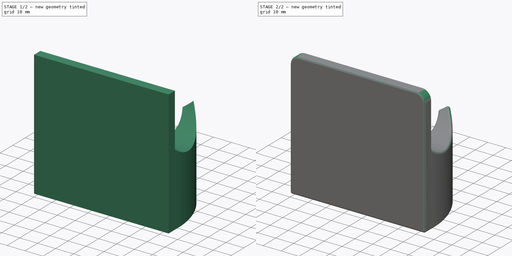
[diagram: build sequence overview — one tinted view per stage of 2, left to right]
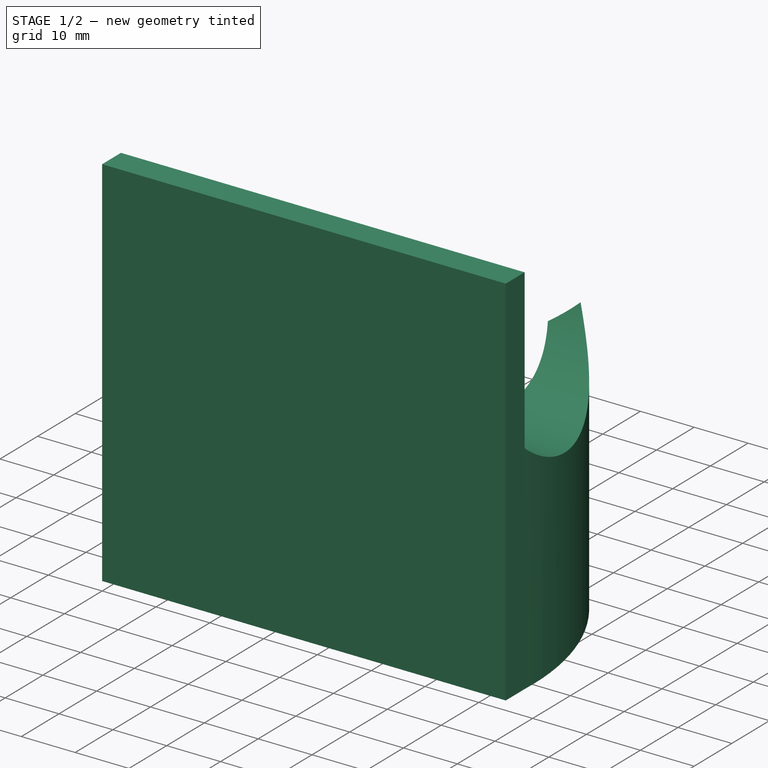
[diagram: stage 1 of 2 — iso view after this stage's code; geometry added in this stage tinted green]
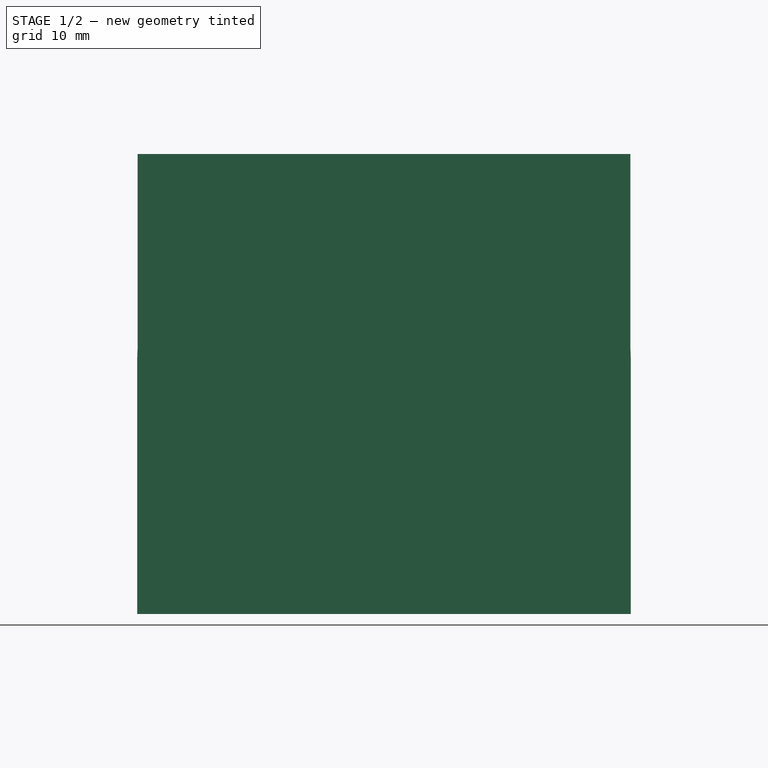
[diagram: stage 1 of 2 — front view after this stage's code; geometry added in this stage tinted green]
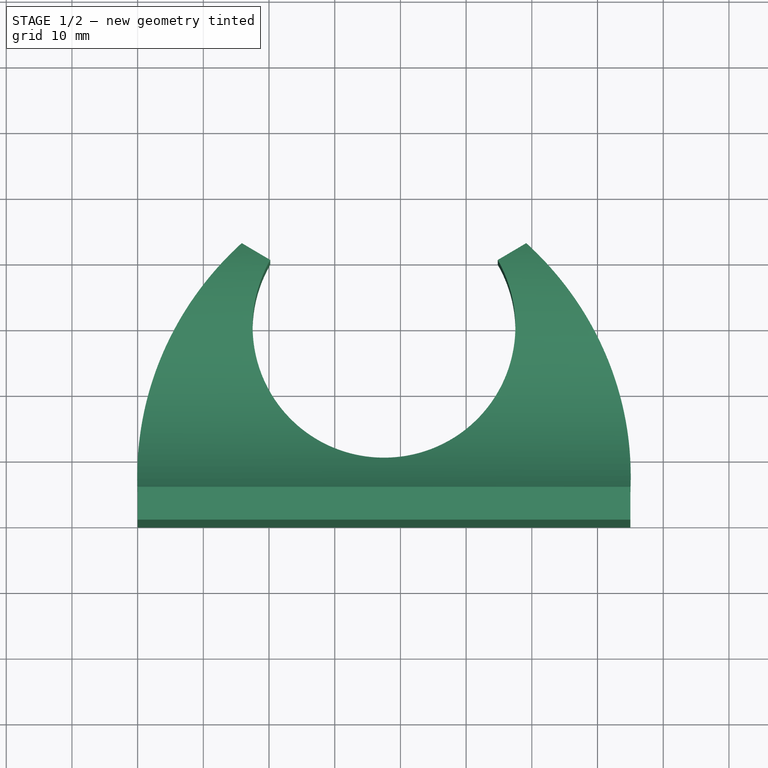
[diagram: stage 1 of 2 — top view after this stage's code; geometry added in this stage tinted green]
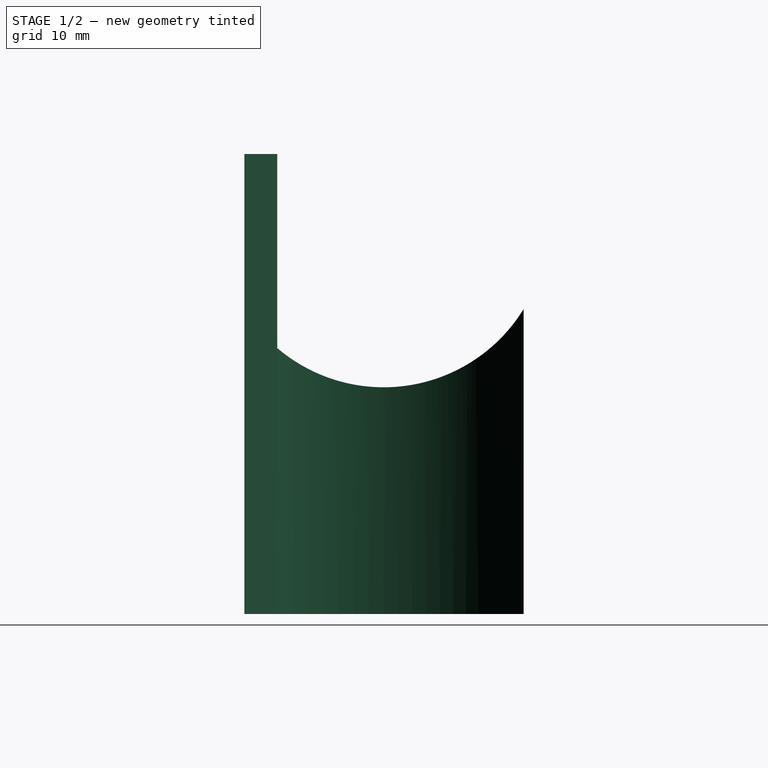
[diagram: stage 1 of 2 — right view after this stage's code; geometry added in this stage tinted green]
FCSTD DOCUMENT  (FreeCAD 1.0R39109 (Git))
Label: broom_hook_awning_v2
License: All rights reserved
LicenseURL: https://en.wikipedia.org/wiki/All_rights_reserved
objects: Sketcher::SketchObject×2, PartDesign::Fillet×2, Spreadsheet::Sheet×1, PartDesign::Pad×1, PartDesign::Pocket×1, PartDesign::Body×1
note: 17 computed .brp shape members not serialized (recipe doc carries the construction recipe); baked Part::Feature solids carry a one-line shape summary decoded from their .brp

FEATURE [Spreadsheet::Sheet] Spreadsheet  label="dimensions"
  cells = A1='width; B1(width)==75 mm; A2='height; B2(height)==50 mm; A3='depth; B3(depth)==5 mm; A4='diameter; B4(diameter)==40 mm
FEATURE [Sketcher::SketchObject] Sketch
  ArcFitTolerance = 0
  AttachmentSupport = -> [XY_Plane]
  FullyConstrained = false
  MakeInternals = false
  MapMode = 5
  expr: Constraints[0] = <<dimensions>>.diameter
  expr: Constraints[10] = <<dimensions>>.depth
  expr: Constraints[11] = <<dimensions>>.width
  expr: Constraints[1] = <<dimensions>>.width / 2
  expr: Constraints[6] = 37.5 mm + <<dimensions>>.depth
  sketch-geometry (9):
    g0: ArcOfCircle CenterX=37.5 CenterY=30 CenterZ=0 NormalX=0 NormalY=0 NormalZ=1 AngleXU=0 Radius=20 StartAngle=2.61799 EndAngle=6.80678
    g1: LineSegment StartX=15.8494 StartY=42.5 StartZ=0 EndX=20.1795 EndY=40 EndZ=0
    g2: LineSegment StartX=54.8205 StartY=40 StartZ=0 EndX=59.1506 EndY=42.5 EndZ=0
    g3: LineSegment StartX=75 StartY=0 StartZ=0 EndX=75 EndY=5 EndZ=0
    g4: LineSegment StartX=0 StartY=5 StartZ=0 EndX=0 EndY=0 EndZ=0
    g5: LineSegment [constr] StartX=-32.4803 StartY=25.4113 StartZ=0 EndX=115.619 EndY=25.4113 EndZ=0
    g6: ArcOfCircle CenterX=47.094 CenterY=7.19511 CenterZ=0 NormalX=0 NormalY=0 NormalZ=1 AngleXU=0 Radius=47.1451 StartAngle=2.29526 EndAngle=3.18817
    g7: ArcOfCircle CenterX=27.906 CenterY=7.19511 CenterZ=0 NormalX=0 NormalY=0 NormalZ=1 AngleXU=0 Radius=47.1451 StartAngle=6.23661 EndAngle=7.12952
    g8: LineSegment StartX=0 StartY=0 StartZ=0 EndX=75 EndY=0 EndZ=0
  constraints (20):
    c: Diameter(g0) = 40
    c: DistanceX(g-1,g0) = 37.5
    c: Angle(g2,g1) = 2.0944
    c: Coincident(g0,g1)
    c: Coincident(g2,g0)
    c: Horizontal(g1,g2)
    c: DistanceY(g-1,g1) = 42.5
    c: Horizontal(g0,g0)
    c: Vertical(g3)
    c: Vertical(g4)
    c: DistanceY(g3,g3) = 5
    c: DistanceX(g4,g3) = 75
    c: Horizontal(g5)
    c: Coincident(g6,g4)
    c: Coincident(g6,g1)
    c: Coincident(g7,g3)
    c: Equal(g6,g7)
    c: Coincident(g8,g4)
    c: Coincident(g8,g3)
    c: Horizontal(g8)
FEATURE [PartDesign::Pad] Pad
  Direction = (0,0,1)
  Length = 70
  Length2 = 10
  Profile = -> Sketch
  ReferenceAxis = -> Sketch [N_Axis]
  Suppressed = false
  Type = 0
FEATURE [Sketcher::SketchObject] Sketch001
  ArcFitTolerance = 0
  AttachmentOffset = pos=(0,0,-1) rot=(0,0,1;0rad)
  AttachmentSupport = -> [YZ_Plane]
  FullyConstrained = true
  MakeInternals = false
  MapMode = 5
  Placement = pos=(-1,0,0) rot=(0.57735,0.57735,0.57735;2.0944rad)
  sketch-geometry (2):
    g0: ArcOfCircle CenterX=21.2071 CenterY=59.5 CenterZ=0 NormalX=0 NormalY=0 NormalZ=1 AngleXU=0 Radius=25 StartAngle=4.00706 EndAngle=8.55931
    g1: LineSegment StartX=5 StartY=40.465 StartZ=0 EndX=5 EndY=78.535 EndZ=0
  constraints (7):
    c: Diameter(g0) = 50
    c: Vertical(g1)
    c: Coincident(g0,g1)
    c: Coincident(g0,g1)
    c: DistanceX(g-1,g0) = 5
    c: DistanceY(g1,g1) = 38.07
    c: DistanceY(g-1,g0) = 59.5
FEATURE [PartDesign::Pocket] Pocket
  BaseFeature = -> Pad
  Direction = (-1,0,0)
  Length = 5
  Length2 = 5
  Profile = -> Sketch001
  ReferenceAxis = -> Sketch001 [N_Axis]
  Reversed = true
  Suppressed = false
  Type = 1
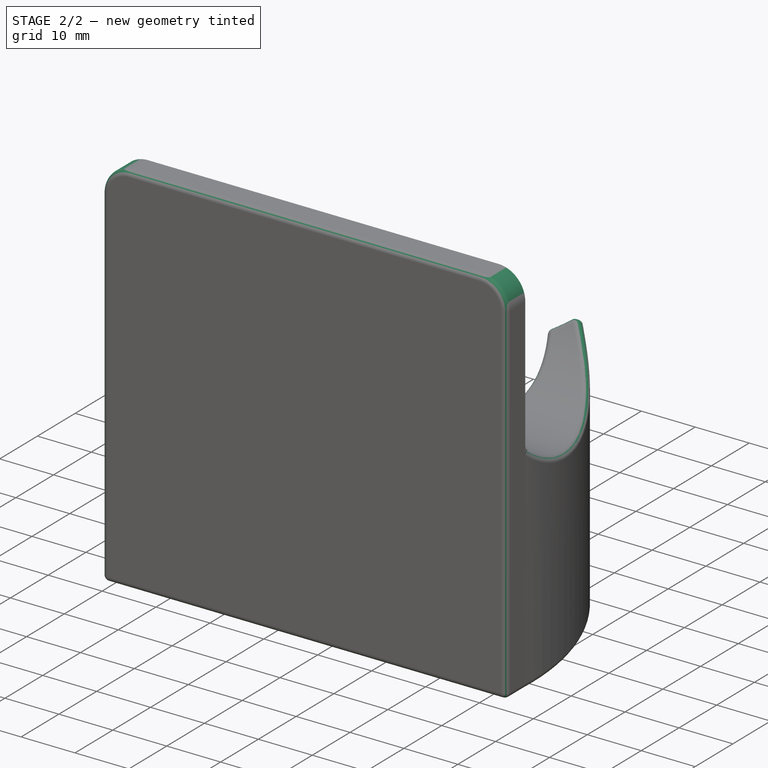
[diagram: stage 2 of 2 — iso view after this stage's code; geometry added in this stage tinted green]
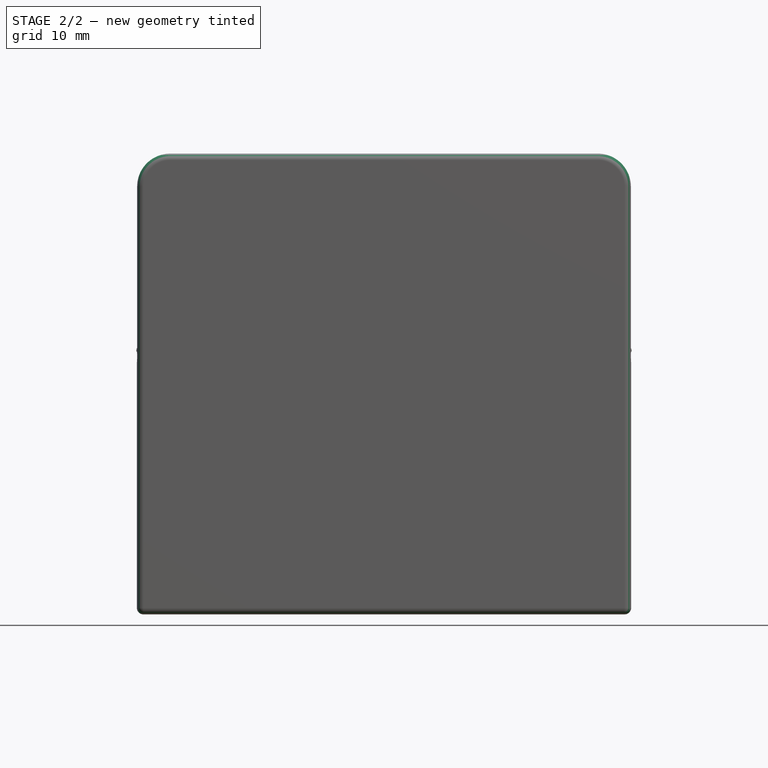
[diagram: stage 2 of 2 — front view after this stage's code; geometry added in this stage tinted green]
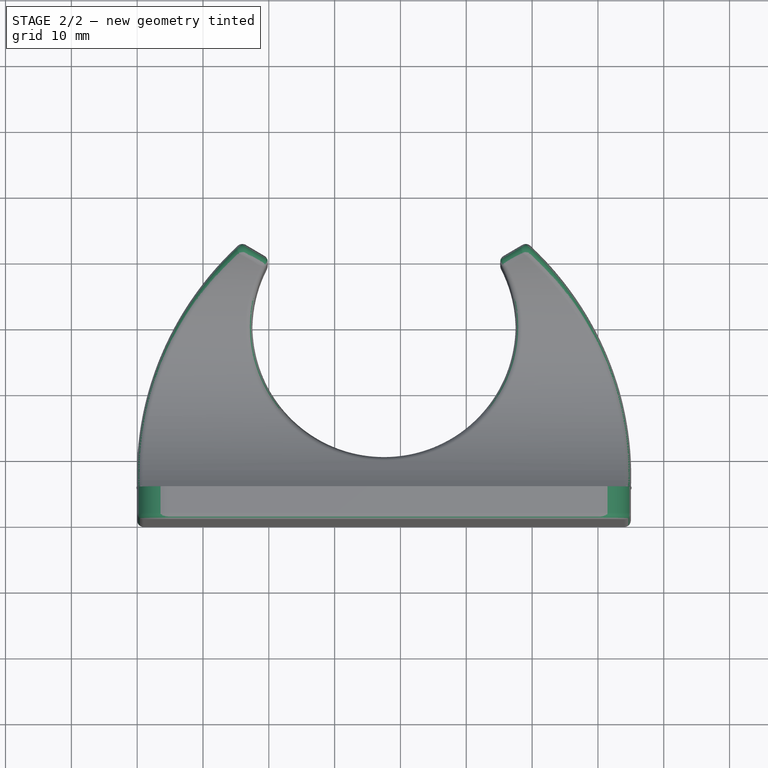
[diagram: stage 2 of 2 — top view after this stage's code; geometry added in this stage tinted green]
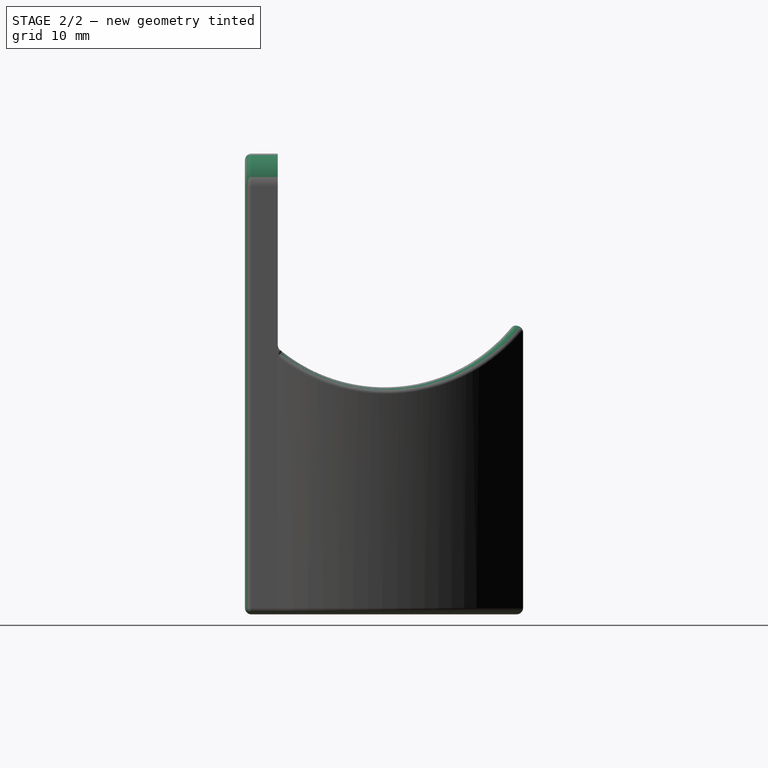
[diagram: stage 2 of 2 — right view after this stage's code; geometry added in this stage tinted green]
FEATURE [PartDesign::Fillet] Fillet
  Base = -> Pocket [Edge28,Edge14]
  BaseFeature = -> Pocket
  Radius = 5
  Refine = true
  SupportTransform = false
  Suppressed = false
  UseAllEdges = false
FEATURE [PartDesign::Fillet] Fillet001
  Base = -> Fillet [Edge23,Edge36,Edge29,Edge30,Edge7,Edge26,Edge27,Edge35,Edge28,Edge14,Edge25,Edge15,Edge34,Edge22,Edge21,Edge20,Edge13,Edge5,Edge24,Edge16,Edge18,Edge4]
  BaseFeature = -> Fillet
  Radius = 1
  Refine = true
  SupportTransform = false
  Suppressed = false
  UseAllEdges = false
FEATURE [PartDesign::Body] Body  label="Körper"
  AllowCompound = false
  Group = -> [Sketch,Pad,Sketch001,Pocket,Fillet,Fillet001]
  Origin = -> Origin
  Tip = -> Fillet001
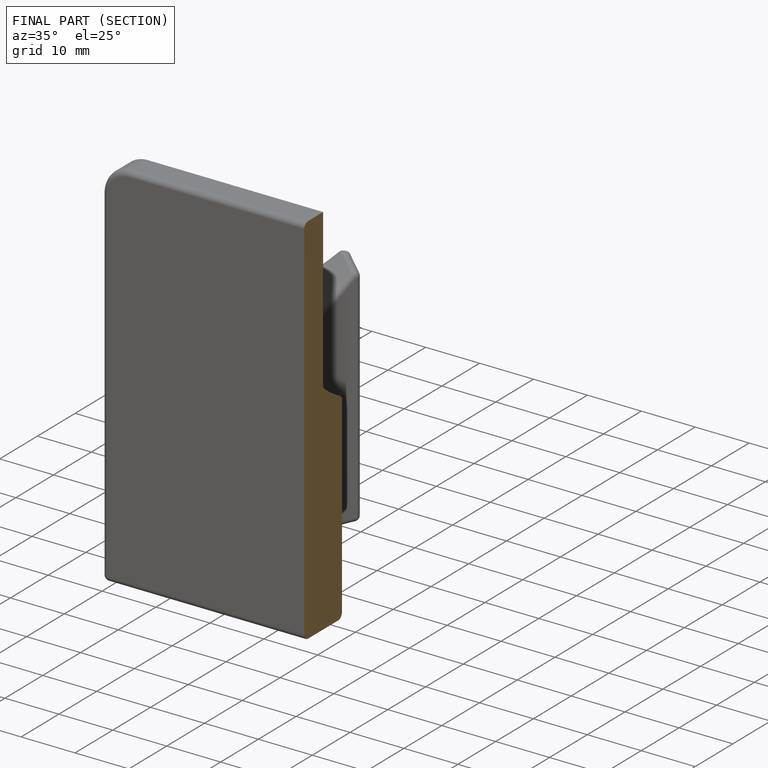
[diagram: finished part — half-section view (interior)]
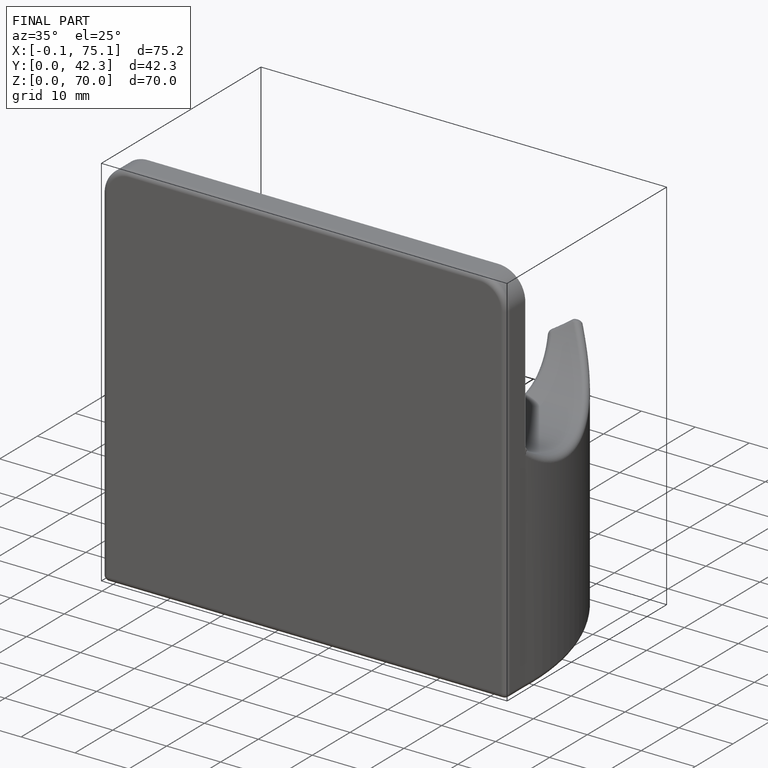
[diagram: finished part — iso view with bounding-box wireframe]
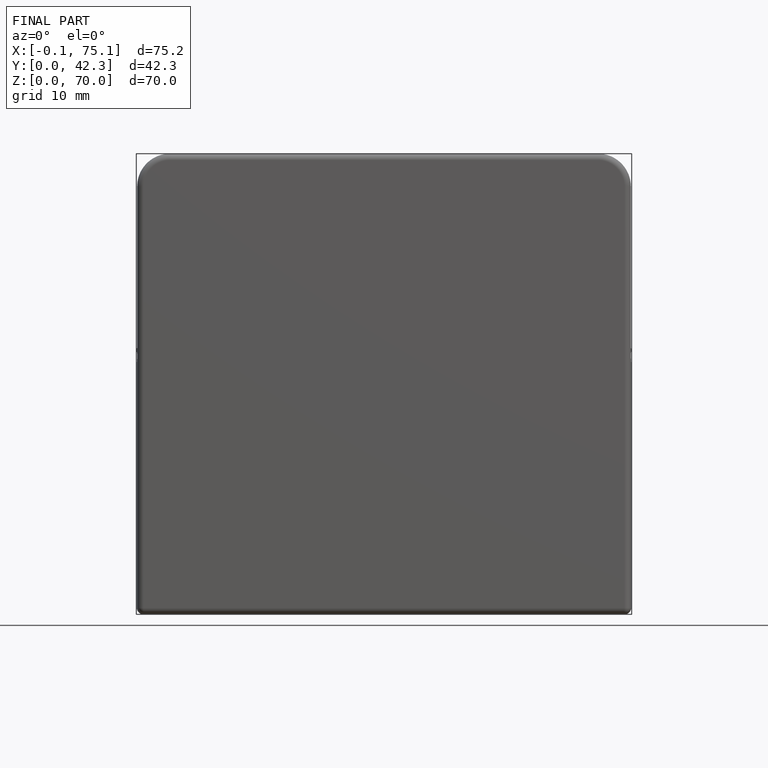
[diagram: finished part — front view with bounding-box wireframe]
